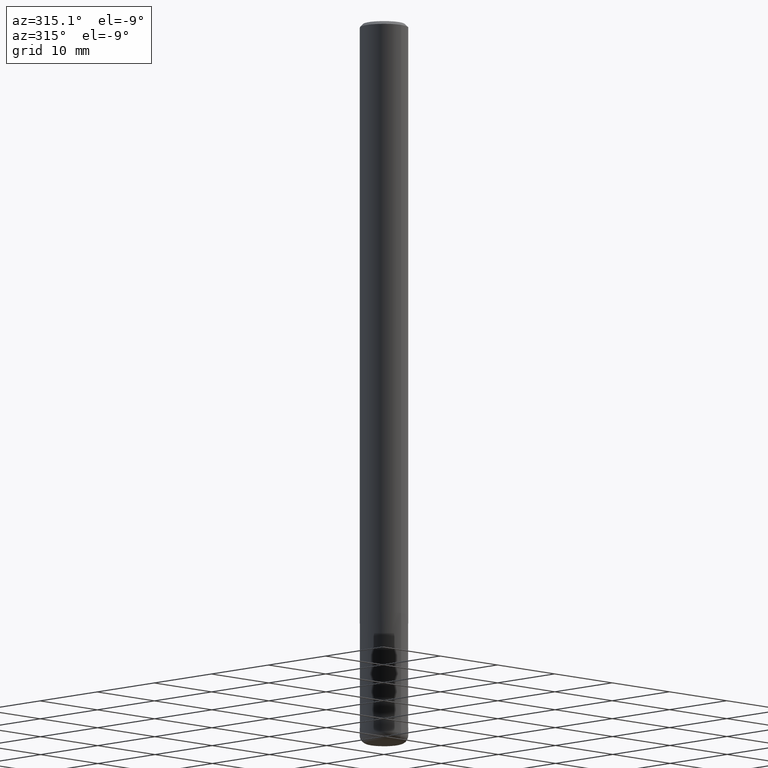
[diagram: clean part render]
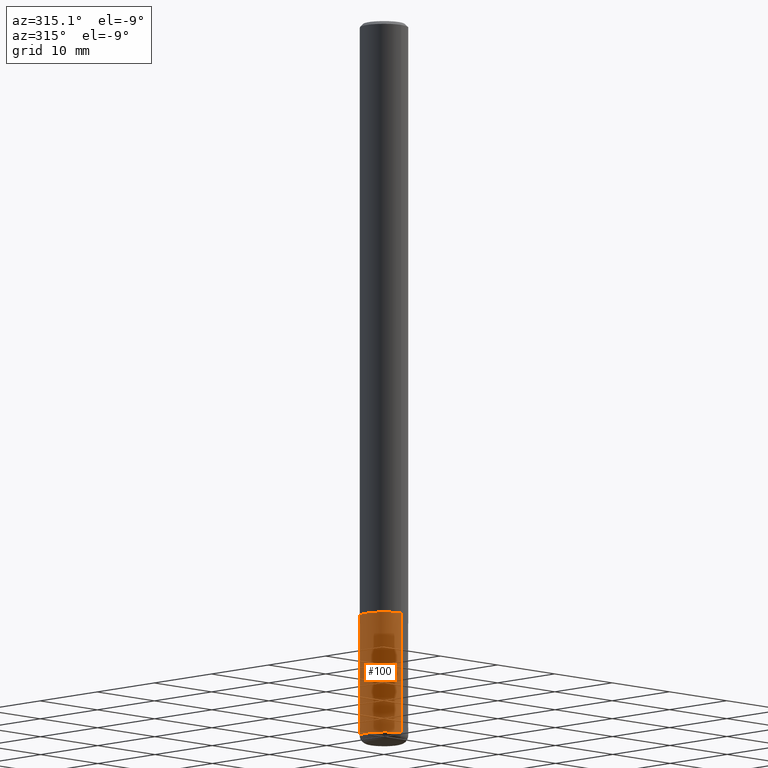
[diagram: same view with one face highlighted and labeled with its STEP entity id]
A machine part, auxiliary view. The second image highlights one B-rep face of the part: STEP entity #100.
In plain terms, the highlighted conical surface has half-angle 0 deg.
Its self-contained STEP definition (entity closure, byte-faithful):
#74=VERTEX_POINT('',#178);
#78=VERTEX_POINT('',#183);
#100=ADVANCED_FACE('',(#207),#208,.T.);
#106=VERTEX_POINT('',#215);
#114=VERTEX_POINT('',#223);
#118=EDGE_CURVE('',#106,#114,#227,.T.);
#122=EDGE_CURVE('',#74,#78,#232,.T.);
#128=EDGE_CURVE('',#114,#78,#238,.T.);
#132=EDGE_CURVE('',#74,#106,#243,.T.);
#178=CARTESIAN_POINT('',(3.67381906146713E-016,-3.0,-89.0));
#183=CARTESIAN_POINT('',(0.0,3.0,-89.0));
#207=FACE_OUTER_BOUND('',#321,.T.);
#208=CONICAL_SURFACE('',#322,2.99995,6.66666666658197E-006);
#215=CARTESIAN_POINT('',(3.67369660083175E-016,-2.9999,-74.0));
#223=CARTESIAN_POINT('',(0.0,2.9999,-74.0));
#227=CIRCLE('',#346,2.9999);
#232=CIRCLE('',#352,3.0);
#238=LINE('',#360,#361);
#243=LINE('',#367,#368);
#321=EDGE_LOOP('',(#437,#438,#439,#440));
#322=AXIS2_PLACEMENT_3D('',#441,#442,#443);
#346=AXIS2_PLACEMENT_3D('',#459,#460,#461);
#352=AXIS2_PLACEMENT_3D('',#470,#471,#472);
#360=CARTESIAN_POINT('',(-3.67375783114944E-016,2.99995,-81.5));
#361=VECTOR('',#476,1.0);
#367=CARTESIAN_POINT('',(3.67375783114944E-016,-2.99995,-81.5));
#368=VECTOR('',#485,1.0);
#437=ORIENTED_EDGE('',*,*,#128,.T.);
#438=ORIENTED_EDGE('',*,*,#122,.F.);
#439=ORIENTED_EDGE('',*,*,#132,.T.);
#440=ORIENTED_EDGE('',*,*,#118,.T.);
#441=CARTESIAN_POINT('',(0.0,0.0,-81.5));
#442=DIRECTION('',(0.0,-0.0,-1.0));
#443=DIRECTION('',(0.0,1.0,0.0));
#459=CARTESIAN_POINT('',(0.0,0.0,-74.0));
#460=DIRECTION('',(0.0,0.0,-1.0));
#461=DIRECTION('',(0.0,1.0,0.0));
#470=CARTESIAN_POINT('',(0.0,0.0,-89.0));
#471=DIRECTION('',(0.0,0.0,-1.0));
#472=DIRECTION('',(0.0,1.0,0.0));
#476=DIRECTION('',(-8.16404235865165E-022,6.66666666653259E-006,-0.999999999977778));
#485=DIRECTION('',(-8.16404235865165E-022,6.66666666653259E-006,0.999999999977778));